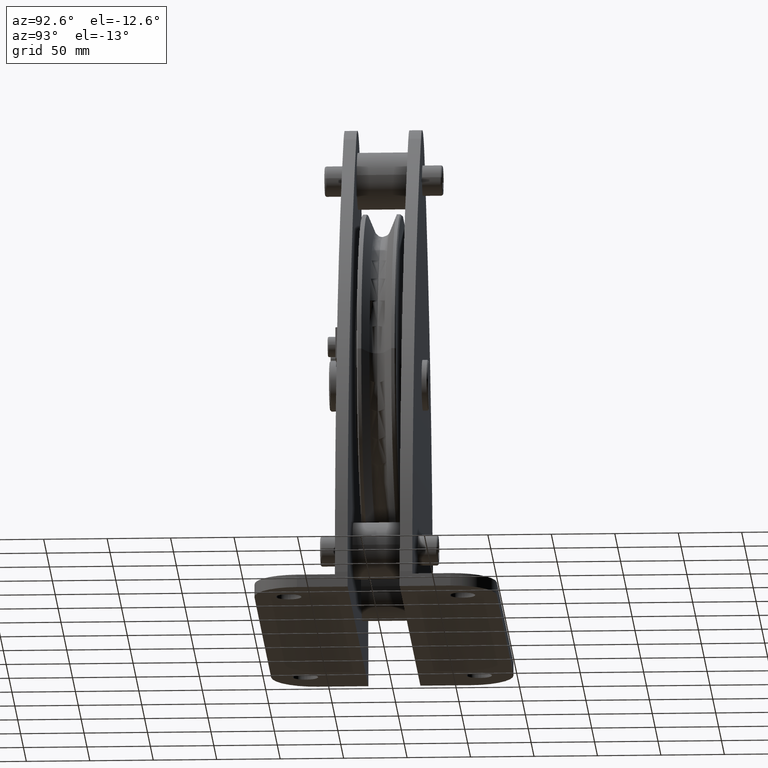
[diagram: clean part render]
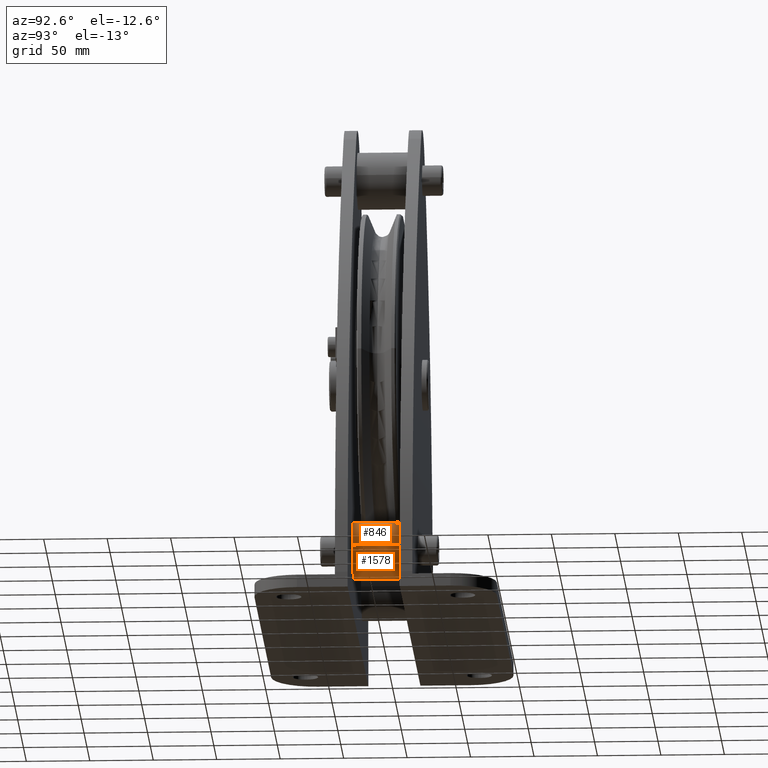
[diagram: same view with one multi-face feature highlighted, each face labeled with its STEP entity id]
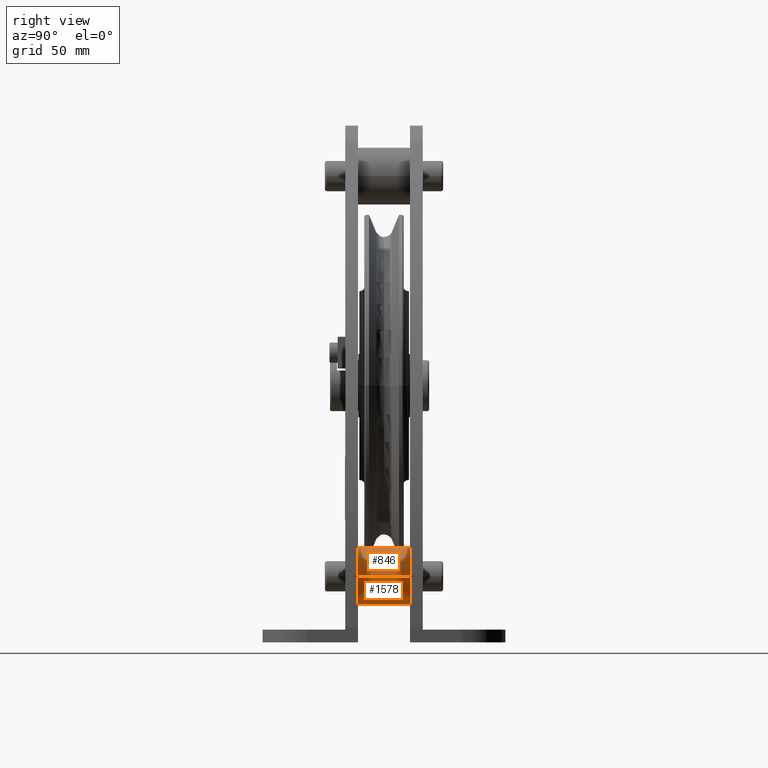
[diagram: same view with one multi-face feature highlighted, each face labeled with its STEP entity id]
A machine part, auxiliary view. The highlighted faces form ONE feature: a constant-radius fillet chain: 2 tangent blend faces with common blend radius 22.5 mm. The faces share edges in the B-rep.
A second angle (right view) of the same feature is appended — it is thin or edge-on in the first view.
Their STEP definitions:
[1] entity #1578 (Cylinder):
#1578=ADVANCED_FACE('',(#3412),#3413,.T.);
#3412=FACE_OUTER_BOUND('',#5484,.T.);
#3413=CYLINDRICAL_SURFACE('',#5485,22.5);
#5484=EDGE_LOOP('',(#10471,#10472,#10473,#10474));
#5485=AXIS2_PLACEMENT_3D('',#10475,#10476,#10477);
#10471=ORIENTED_EDGE('',*,*,#12835,.T.);
#10472=ORIENTED_EDGE('',*,*,#14147,.F.);
#10473=ORIENTED_EDGE('',*,*,#12837,.T.);
#10474=ORIENTED_EDGE('',*,*,#14076,.F.);
#10475=CARTESIAN_POINT('',(75.0,0.0,-150.0));
#10476=DIRECTION('',(0.0,-1.0,0.0));
#10477=DIRECTION('',(1.0,0.0,0.0));
#12835=EDGE_CURVE('',#15625,#15626,#15627,.T.);
#12837=EDGE_CURVE('',#15630,#15628,#15631,.T.);
#14076=EDGE_CURVE('',#15625,#15628,#17477,.T.);
#14147=EDGE_CURVE('',#15630,#15626,#17578,.T.);
#15625=VERTEX_POINT('',#23133);
#15626=VERTEX_POINT('',#23134);
#15627=LINE('',#23135,#23136);
#15628=VERTEX_POINT('',#23137);
#15630=VERTEX_POINT('',#23139);
#15631=LINE('',#23140,#23141);
#17477=CIRCLE('',#25649,22.5);
#17578=CIRCLE('',#25783,22.5);
#23133=CARTESIAN_POINT('',(97.5,20.5,-150.0));
#23134=CARTESIAN_POINT('',(97.5,-20.5,-150.0));
#23135=CARTESIAN_POINT('',(97.5,0.0,-150.0));
#23136=VECTOR('',#28851,1.0);
#23137=CARTESIAN_POINT('',(52.5,20.5,-150.0));
#23139=CARTESIAN_POINT('',(52.5,-20.5,-150.0));
#23140=CARTESIAN_POINT('',(52.5,0.0,-150.0));
#23141=VECTOR('',#28855,1.0);
#25649=AXIS2_PLACEMENT_3D('',#30265,#30266,#30267);
#25783=AXIS2_PLACEMENT_3D('',#30355,#30356,#30357);
#28851=DIRECTION('',(0.0,-1.0,0.0));
#28855=DIRECTION('',(-0.0,1.0,-0.0));
#30265=CARTESIAN_POINT('',(75.0,20.5,-150.0));
#30266=DIRECTION('',(-0.0,1.0,0.0));
#30267=DIRECTION('',(1.0,0.0,0.0));
#30355=CARTESIAN_POINT('',(75.0,-20.5,-150.0));
#30356=DIRECTION('',(0.0,-1.0,0.0));
#30357=DIRECTION('',(1.0,0.0,0.0));
[2] entity #846 (Cylinder):
#846=ADVANCED_FACE('',(#2262),#2263,.T.);
#2262=FACE_OUTER_BOUND('',#4334,.T.);
#2263=CYLINDRICAL_SURFACE('',#4335,22.5);
#4334=EDGE_LOOP('',(#6986,#6987,#6988,#6989));
#4335=AXIS2_PLACEMENT_3D('',#6990,#6991,#6992);
#6986=ORIENTED_EDGE('',*,*,#12835,.F.);
#6987=ORIENTED_EDGE('',*,*,#12836,.F.);
#6988=ORIENTED_EDGE('',*,*,#12837,.F.);
#6989=ORIENTED_EDGE('',*,*,#12838,.F.);
#6990=CARTESIAN_POINT('',(75.0,0.0,-150.0));
#6991=DIRECTION('',(0.0,-1.0,0.0));
#6992=DIRECTION('',(1.0,0.0,0.0));
#12835=EDGE_CURVE('',#15625,#15626,#15627,.T.);
#12836=EDGE_CURVE('',#15628,#15625,#15629,.T.);
#12837=EDGE_CURVE('',#15630,#15628,#15631,.T.);
#12838=EDGE_CURVE('',#15626,#15630,#15632,.T.);
#15625=VERTEX_POINT('',#23133);
#15626=VERTEX_POINT('',#23134);
#15627=LINE('',#23135,#23136);
#15628=VERTEX_POINT('',#23137);
#15629=CIRCLE('',#23138,22.5);
#15630=VERTEX_POINT('',#23139);
#15631=LINE('',#23140,#23141);
#15632=CIRCLE('',#23142,22.5);
#23133=CARTESIAN_POINT('',(97.5,20.5,-150.0));
#23134=CARTESIAN_POINT('',(97.5,-20.5,-150.0));
#23135=CARTESIAN_POINT('',(97.5,0.0,-150.0));
#23136=VECTOR('',#28851,1.0);
#23137=CARTESIAN_POINT('',(52.5,20.5,-150.0));
#23138=AXIS2_PLACEMENT_3D('',#28852,#28853,#28854);
#23139=CARTESIAN_POINT('',(52.5,-20.5,-150.0));
#23140=CARTESIAN_POINT('',(52.5,0.0,-150.0));
#23141=VECTOR('',#28855,1.0);
#23142=AXIS2_PLACEMENT_3D('',#28856,#28857,#28858);
#28851=DIRECTION('',(0.0,-1.0,0.0));
#28852=CARTESIAN_POINT('',(75.0,20.5,-150.0));
#28853=DIRECTION('',(-0.0,1.0,0.0));
#28854=DIRECTION('',(1.0,0.0,0.0));
#28855=DIRECTION('',(-0.0,1.0,-0.0));
#28856=CARTESIAN_POINT('',(75.0,-20.5,-150.0));
#28857=DIRECTION('',(0.0,-1.0,0.0));
#28858=DIRECTION('',(1.0,0.0,0.0));